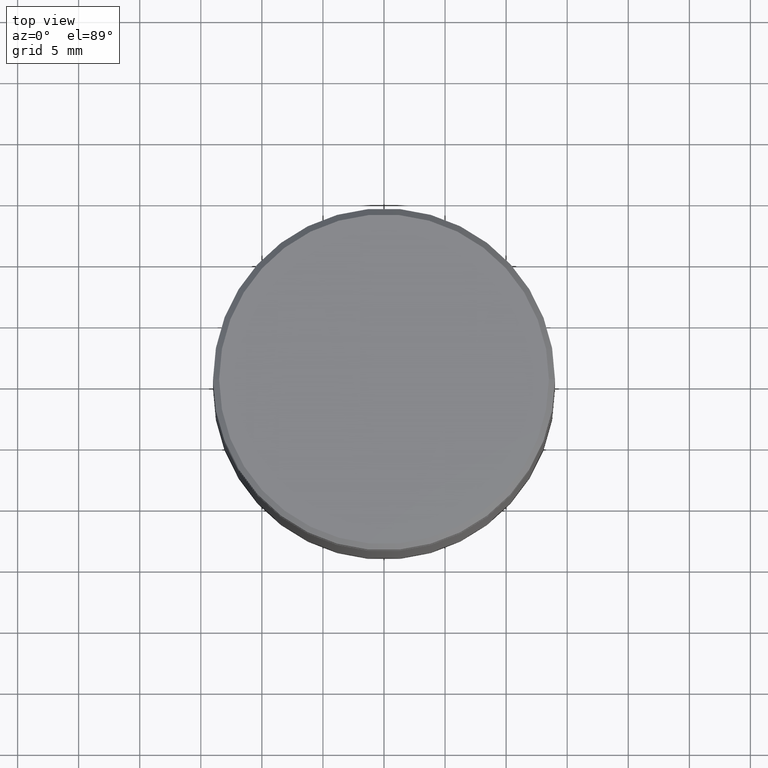
[diagram: clean part render]
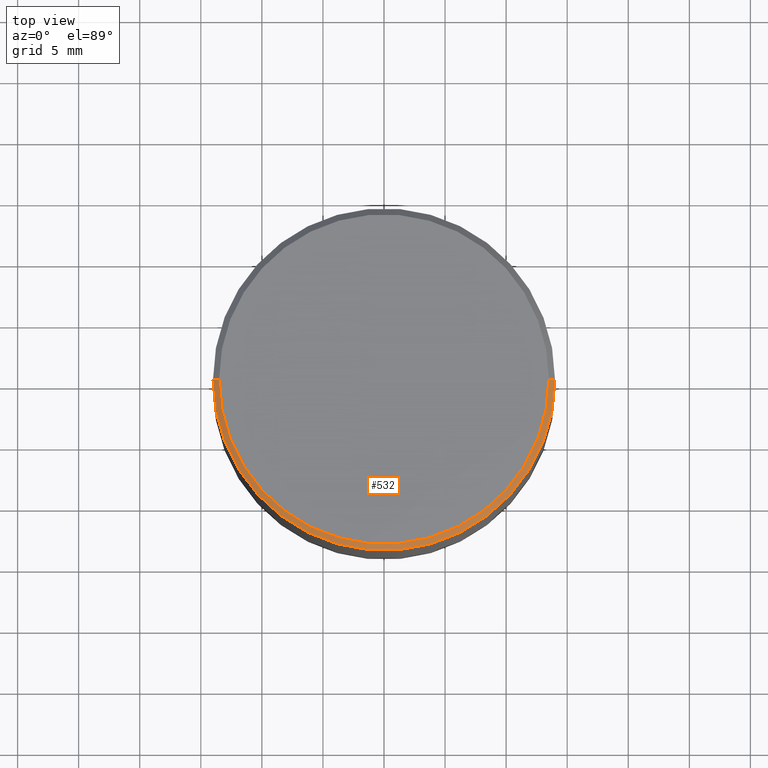
[diagram: same view with one face highlighted and labeled with its STEP entity id]
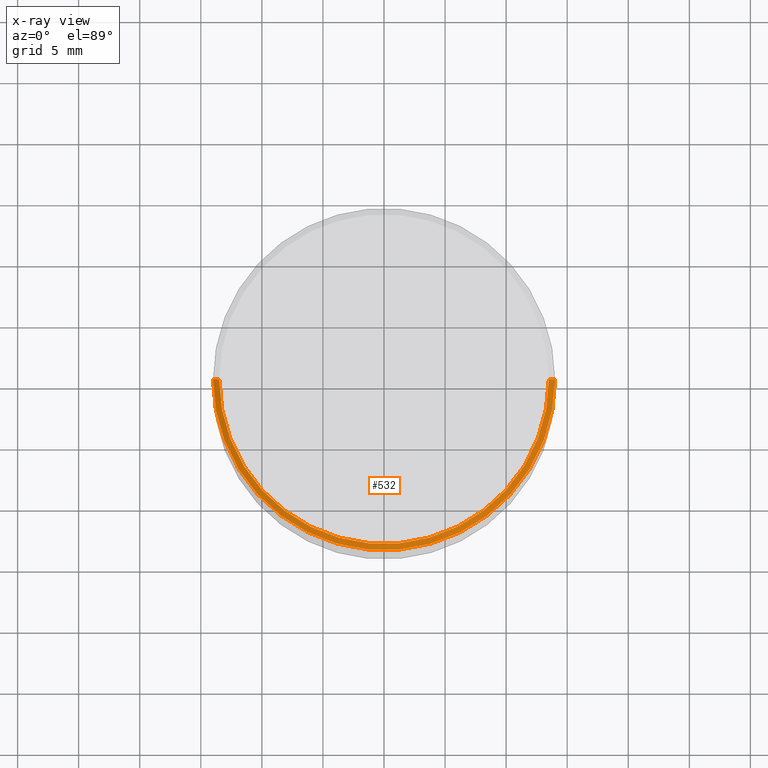
[diagram: x-ray of the same camera — body ghosted, the highlighted face saturated]
A machine part, top view. The second image highlights one B-rep face of the part: STEP entity #532.
The next image is the same camera in x-ray: the body ghosted, the highlighted face saturated — about 0% of this face is hidden behind the body in this view.
In plain terms, the highlighted conical surface has half-angle 45 deg.
Its self-contained STEP definition (entity closure, byte-faithful):
#47 = LINE ( 'NONE', #271, #470 ) ;
#49 = VERTEX_POINT ( 'NONE', #535 ) ;
#60 = VERTEX_POINT ( 'NONE', #485 ) ;
#93 = DIRECTION ( 'NONE',  ( 1.000000000000000000, 0.000000000000000000, 0.000000000000000000 ) ) ;
#106 = EDGE_CURVE ( 'NONE', #496, #49, #47, .T. ) ;
#134 = DIRECTION ( 'NONE',  ( -1.000000000000000000, 0.000000000000000000, 0.000000000000000000 ) ) ;
#154 = CARTESIAN_POINT ( 'NONE',  ( 0.000000000000000000, 0.000000000000000000, -0.5000000000000022204 ) ) ;
#184 = VERTEX_POINT ( 'NONE', #402 ) ;
#190 = CARTESIAN_POINT ( 'NONE',  ( -13.50000000000000533, 0.000000000000000000, 0.000000000000000000 ) ) ;
#200 = ORIENTED_EDGE ( 'NONE', *, *, #474, .F. ) ;
#231 = DIRECTION ( 'NONE',  ( 0.000000000000000000, 0.000000000000000000, -1.000000000000000000 ) ) ;
#235 = ORIENTED_EDGE ( 'NONE', *, *, #246, .F. ) ;
#246 = EDGE_CURVE ( 'NONE', #49, #60, #384, .T. ) ;
#256 = AXIS2_PLACEMENT_3D ( 'NONE', #536, #231, #134 ) ;
#265 = DIRECTION ( 'NONE',  ( -0.7071067811865426878, 0.000000000000000000, -0.7071067811865524577 ) ) ;
#271 = CARTESIAN_POINT ( 'NONE',  ( 13.50000000000000533, 1.653273178848927458E-15, 0.000000000000000000 ) ) ;
#293 = AXIS2_PLACEMENT_3D ( 'NONE', #154, #413, #467 ) ;
#312 = LINE ( 'NONE', #190, #484 ) ;
#332 = ORIENTED_EDGE ( 'NONE', *, *, #497, .T. ) ;
#350 = DIRECTION ( 'NONE',  ( -0.000000000000000000, -0.000000000000000000, 1.000000000000000000 ) ) ;
#384 = CIRCLE ( 'NONE', #293, 14.00000000000000000 ) ;
#399 = DIRECTION ( 'NONE',  ( 0.7071067811865426878, 8.659560562354873694E-17, -0.7071067811865524577 ) ) ;
#400 = CARTESIAN_POINT ( 'NONE',  ( 13.50000000000000533, 1.683889348827611048E-15, 0.000000000000000000 ) ) ;
#402 = CARTESIAN_POINT ( 'NONE',  ( -13.50000000000000533, 0.000000000000000000, 0.000000000000000000 ) ) ;
#408 = CIRCLE ( 'NONE', #503, 13.50000000000000533 ) ;
#413 = DIRECTION ( 'NONE',  ( 0.000000000000000000, 0.000000000000000000, -1.000000000000000000 ) ) ;
#465 = ORIENTED_EDGE ( 'NONE', *, *, #106, .F. ) ;
#467 = DIRECTION ( 'NONE',  ( 1.000000000000000000, 0.000000000000000000, 0.000000000000000000 ) ) ;
#470 = VECTOR ( 'NONE', #399, 1000.000000000000000 ) ;
#474 = EDGE_CURVE ( 'NONE', #184, #496, #408, .T. ) ;
#481 = CARTESIAN_POINT ( 'NONE',  ( 0.000000000000000000, 0.000000000000000000, 0.000000000000000000 ) ) ;
#484 = VECTOR ( 'NONE', #265, 1000.000000000000000 ) ;
#485 = CARTESIAN_POINT ( 'NONE',  ( -14.00000000000000000, 1.714505518806294638E-15, -0.5000000000000022204 ) ) ;
#488 = FACE_OUTER_BOUND ( 'NONE', #506, .T. ) ;
#496 = VERTEX_POINT ( 'NONE', #400 ) ;
#497 = EDGE_CURVE ( 'NONE', #184, #60, #312, .T. ) ;
#503 = AXIS2_PLACEMENT_3D ( 'NONE', #481, #350, #93 ) ;
#506 = EDGE_LOOP ( 'NONE', ( #465, #200, #332, #235 ) ) ;
#516 = CONICAL_SURFACE ( 'NONE', #256, 13.50000000000000533, 0.7853981633974415066 ) ;
#532 = ADVANCED_FACE ( 'NONE', ( #488 ), #516, .T. ) ;
#535 = CARTESIAN_POINT ( 'NONE',  ( 14.00000000000000000, 0.000000000000000000, -0.5000000000000022204 ) ) ;
#536 = CARTESIAN_POINT ( 'NONE',  ( 0.000000000000000000, 0.000000000000000000, 0.000000000000000000 ) ) ;